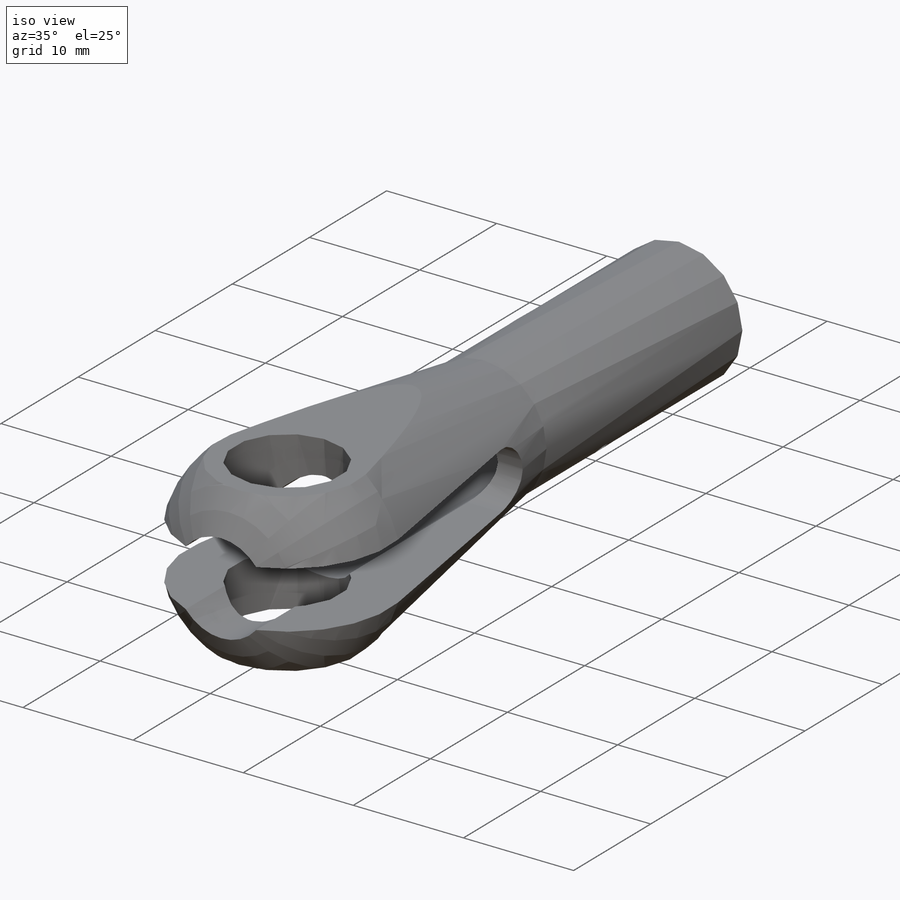
[diagram: iso view]
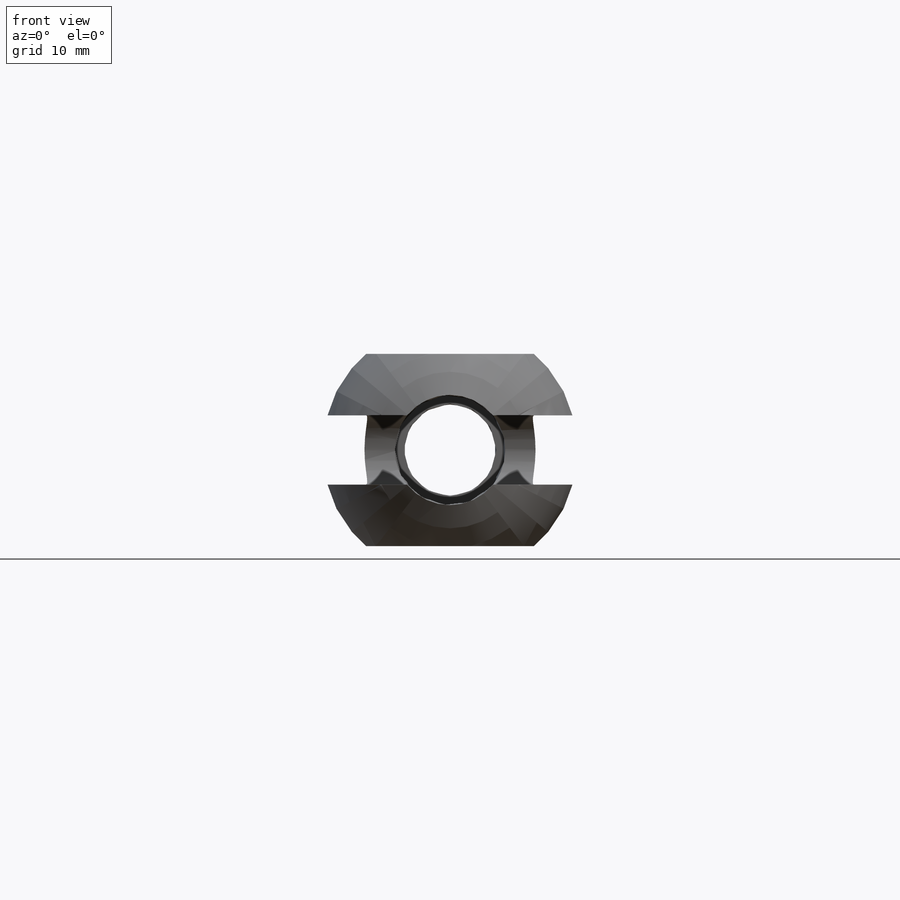
[diagram: front view]
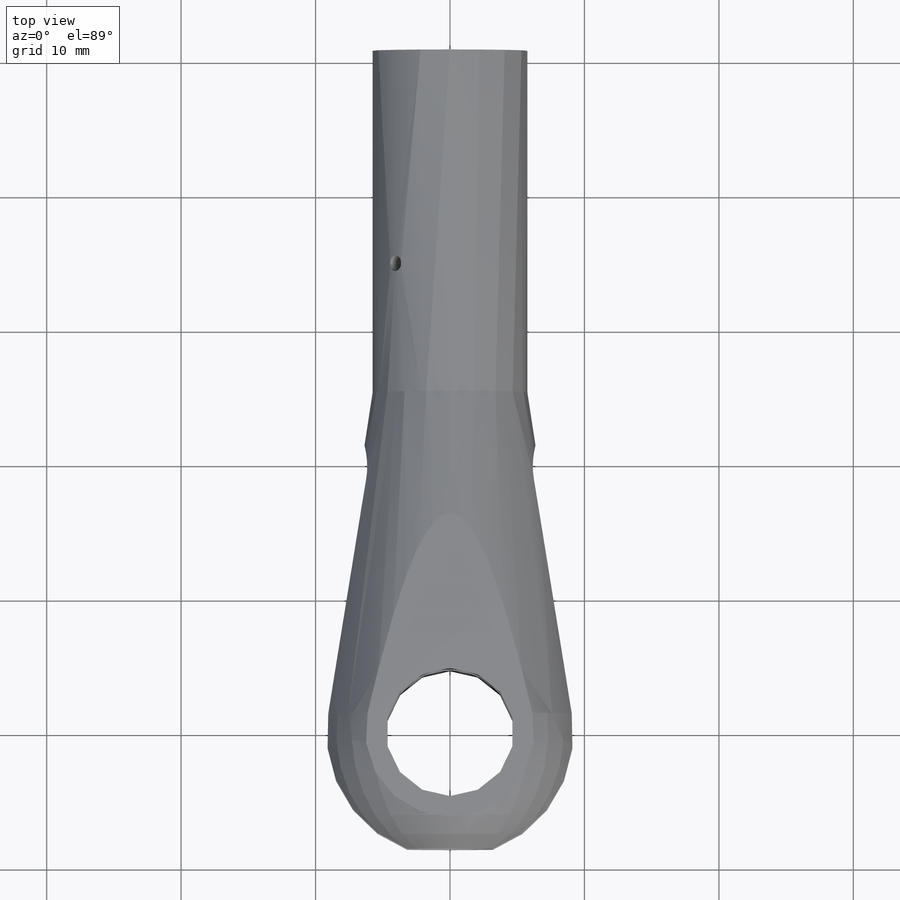
[diagram: top view]
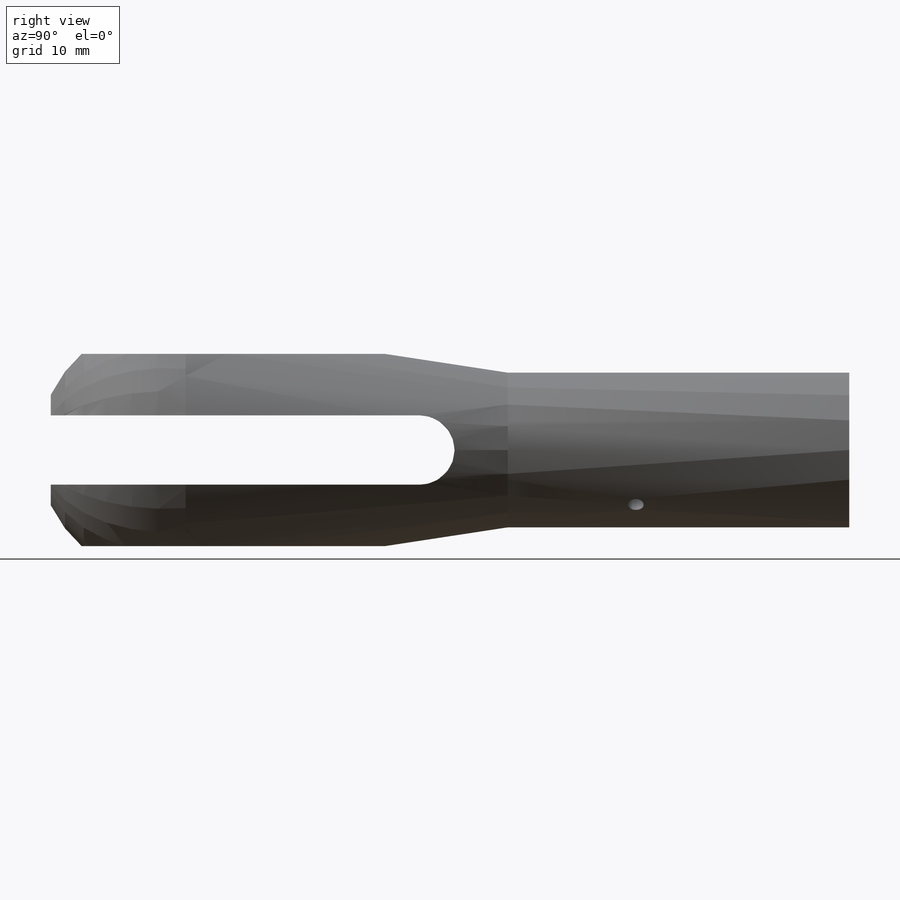
[diagram: right view]
SOLIDWORKS PART (.sldprt)
format: sldprt  version: not decoded by parser v0  size: 4,035,072 bytes
history: native  units: mm
features: sketch x10, hole x3, plane x2, material x1, revolve x1, cut_extrude x1, mirror x1, cut_revolve x1 + 1 further entry (+12 scaffold rows collapsed)
feature tree (33):
  scaffold x12  (default folders/planes/origin — collapsed)
  material  "AISI 4340 Steel, normalized"
  "Design Table"
  sketch  "Sketch1"  dims[c1.D3=~9.028833mm c1.M_=11.5062mm c1.D2=25.4mm c2.D3=~4.127885mm c2.S/2_=9.525mm c2.B_=50.8mm c2.U_=25.4mm]
  revolve  "Revolve1"  Angle=360deg
  sketch  "Sketch2"  dims[Tap Drill Dia_=6.9088mm]
  cut_extrude  "C-Ext Tap Drill"  Depth=14.3002mm Y_=14.3002mm
  sketch  "Sketch3"  dims[Drill A_=8.2042mm]
  hole  "C-Ext Rod Clearance Hole"  [1 undecoded]
  plane  "Plane1"  Offset=7.1501mm F/2_=7.1501mm
  sketch  "Sketch6"
  mirror  "Mirror Flat"
  hole  "3/8 (0.375) Diameter Hole1"  Depth=14.3002mm  [1 undecoded]
  sketch  "Sketch8"
  sketch  "Sketch7"  dims[hole-wizard template sketch: 59 standard entries collapsed; hole parameters kept: c18.D_=9.525mm c18.Thru Hole Depth=14.3002mm]
  sketch  "Sketch9"  dims[D2=2.5781mm G_=5.1562mm H_=21.4376mm]
  sketch  "Sketch13"  dims[c1.D3=0.1016mm c1.D1=~1.033448mm c2.D1=60.0deg c2.Thread Spacing=~1.058333mm c2.D3=0.0254mm]
  cut_revolve  "C-Rev Threads"  Angle=360deg
  plane  "Plane, Witness Hole"
  sketch  "Sketch12"  dims[D1=~1.474397mm D2=1.1684mm Z_=15.875mm]
  hole  "C-Ext Witness Hole"  [1 undecoded]
  sketch  "Sketch, Hole Center"
decode coverage: 11 of 17 modeling features carry decoded parameters; 1 rows unclassified (native names shown)
note: ~ marks probable driven/reference dimensions
note: 3 parameter values undecoded
summary: no parameter record found for 3 features
note: suppression state not decoded; provenance and decode notes live in map.json
